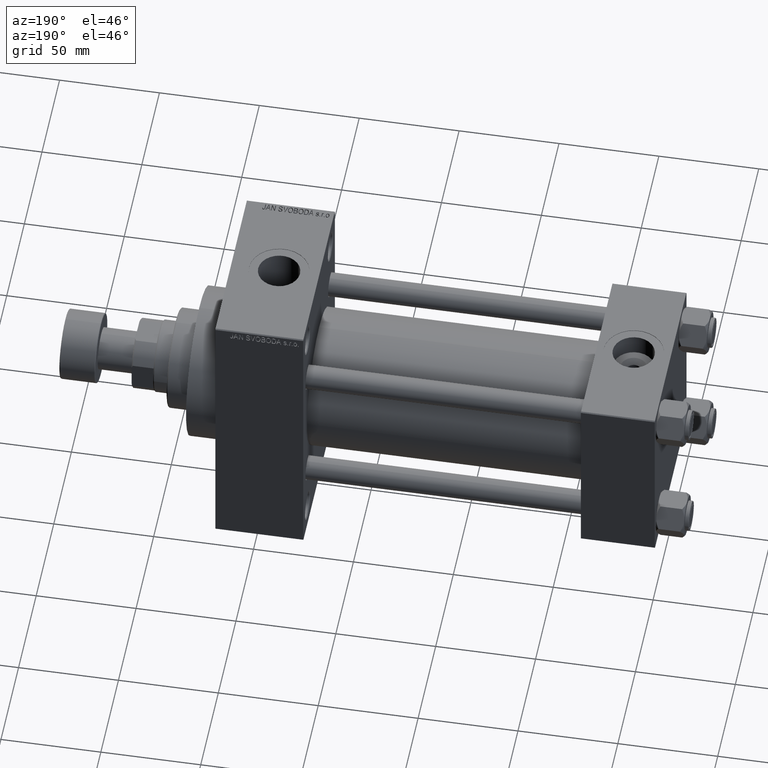
[diagram: clean part render]
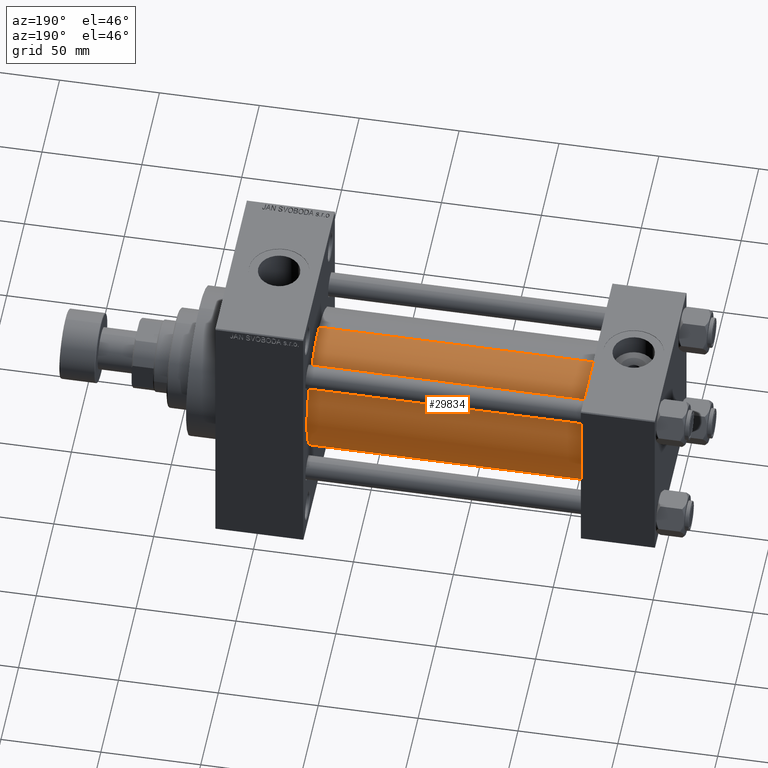
[diagram: same view with one face highlighted and labeled with its STEP entity id]
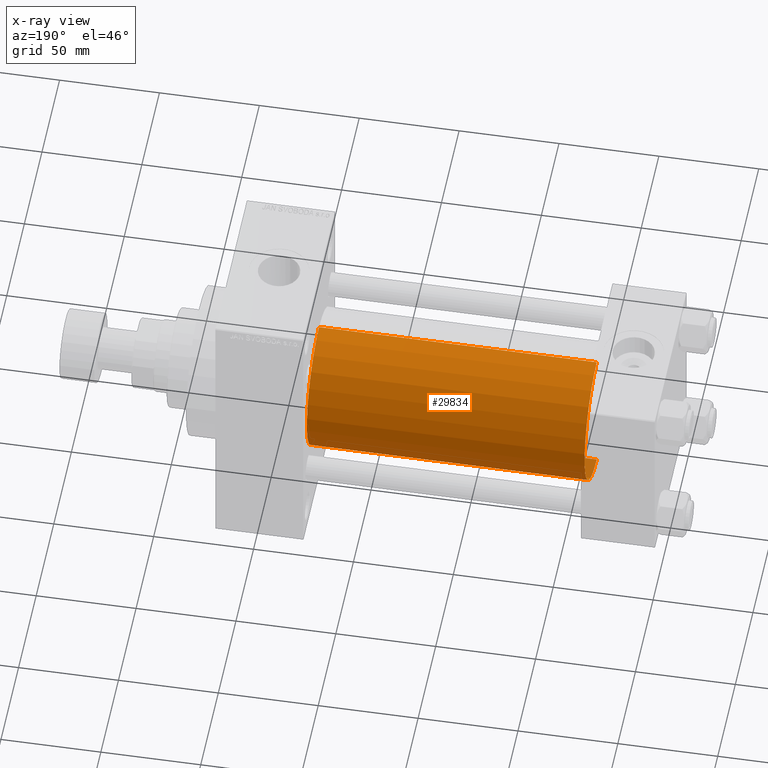
[diagram: x-ray of the same camera — body ghosted, the highlighted face saturated]
A machine part, auxiliary view. The second image highlights one B-rep face of the part: STEP entity #29834.
The next image is the same camera in x-ray: the body ghosted, the highlighted face saturated — about 1% of this face is hidden behind the body in this view.
In plain terms, the highlighted cylindrical surface (partial cylindrical patch) has radius 34.5 mm, axis along (-1, -0, -0).
Its self-contained STEP definition (entity closure, byte-faithful):
#248 = DIRECTION ( 'NONE',  ( 1.000000000000000000, 0.000000000000000000, 0.000000000000000000 ) ) ;
#1063 = DIRECTION ( 'NONE',  ( -1.000000000000000000, -0.000000000000000000, -0.000000000000000000 ) ) ;
#1422 = CIRCLE ( 'NONE', #44742, 34.50000000000000000 ) ;
#1857 = VECTOR ( 'NONE', #39947, 1000.000000000000000 ) ;
#4614 = ORIENTED_EDGE ( 'NONE', *, *, #28811, .T. ) ;
#5324 = AXIS2_PLACEMENT_3D ( 'NONE', #8327, #1063, #16555 ) ;
#8327 = CARTESIAN_POINT ( 'NONE',  ( 176.0000000000000284, -2.602085213965210642E-15, 0.000000000000000000 ) ) ;
#8740 = EDGE_CURVE ( 'NONE', #31319, #17967, #46976, .T. ) ;
#12220 = FACE_OUTER_BOUND ( 'NONE', #19879, .T. ) ;
#14519 = CARTESIAN_POINT ( 'NONE',  ( 176.0000000000000284, 1.622946243093158675E-15, -34.50000000000000000 ) ) ;
#15740 = EDGE_CURVE ( 'NONE', #31319, #28419, #36908, .T. ) ;
#16555 = DIRECTION ( 'NONE',  ( 0.000000000000000000, 0.000000000000000000, 1.000000000000000000 ) ) ;
#17662 = DIRECTION ( 'NONE',  ( -1.000000000000000000, -0.000000000000000000, -0.000000000000000000 ) ) ;
#17967 = VERTEX_POINT ( 'NONE', #33202 ) ;
#18539 = DIRECTION ( 'NONE',  ( 0.000000000000000000, 0.000000000000000000, 1.000000000000000000 ) ) ;
#19430 = CARTESIAN_POINT ( 'NONE',  ( 37.00000000000000711, -2.602085213965210642E-15, 34.50000000000000000 ) ) ;
#19879 = EDGE_LOOP ( 'NONE', ( #39370, #37635, #4614, #42012 ) ) ;
#21296 = LINE ( 'NONE', #44060, #33737 ) ;
#21468 = AXIS2_PLACEMENT_3D ( 'NONE', #27113, #248, #34126 ) ;
#27113 = CARTESIAN_POINT ( 'NONE',  ( 176.0000000000000284, -2.602085213965210642E-15, 0.000000000000000000 ) ) ;
#28023 = VERTEX_POINT ( 'NONE', #19430 ) ;
#28419 = VERTEX_POINT ( 'NONE', #32170 ) ;
#28811 = EDGE_CURVE ( 'NONE', #17967, #28023, #1422, .T. ) ;
#29834 = ADVANCED_FACE ( 'NONE', ( #12220 ), #42231, .T. ) ;
#31319 = VERTEX_POINT ( 'NONE', #39613 ) ;
#32170 = CARTESIAN_POINT ( 'NONE',  ( 176.0000000000000284, -2.602085213965210642E-15, 34.50000000000000000 ) ) ;
#33202 = CARTESIAN_POINT ( 'NONE',  ( 37.00000000000000711, 1.622946243093158675E-15, -34.50000000000000000 ) ) ;
#33737 = VECTOR ( 'NONE', #17662, 1000.000000000000000 ) ;
#34126 = DIRECTION ( 'NONE',  ( 0.000000000000000000, 0.000000000000000000, -1.000000000000000000 ) ) ;
#36221 = CARTESIAN_POINT ( 'NONE',  ( 37.00000000000000711, -2.602085213965210642E-15, 0.000000000000000000 ) ) ;
#36908 = CIRCLE ( 'NONE', #21468, 34.50000000000000000 ) ;
#37635 = ORIENTED_EDGE ( 'NONE', *, *, #8740, .T. ) ;
#39370 = ORIENTED_EDGE ( 'NONE', *, *, #15740, .F. ) ;
#39613 = CARTESIAN_POINT ( 'NONE',  ( 176.0000000000000284, 1.622946243093158675E-15, -34.50000000000000000 ) ) ;
#39947 = DIRECTION ( 'NONE',  ( -1.000000000000000000, -0.000000000000000000, -0.000000000000000000 ) ) ;
#42012 = ORIENTED_EDGE ( 'NONE', *, *, #46459, .F. ) ;
#42231 = CYLINDRICAL_SURFACE ( 'NONE', #5324, 34.50000000000000000 ) ;
#44060 = CARTESIAN_POINT ( 'NONE',  ( 176.0000000000000284, -2.602085213965210642E-15, 34.50000000000000000 ) ) ;
#44742 = AXIS2_PLACEMENT_3D ( 'NONE', #36221, #47354, #18539 ) ;
#46459 = EDGE_CURVE ( 'NONE', #28419, #28023, #21296, .T. ) ;
#46976 = LINE ( 'NONE', #14519, #1857 ) ;
#47354 = DIRECTION ( 'NONE',  ( 1.000000000000000000, -0.000000000000000000, 0.000000000000000000 ) ) ;